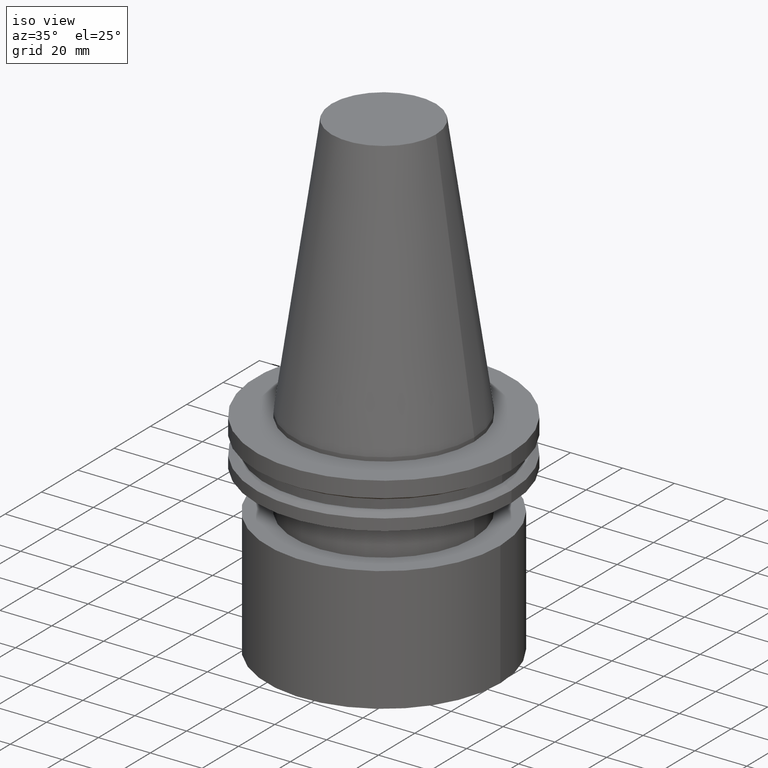
[diagram: clean part render]
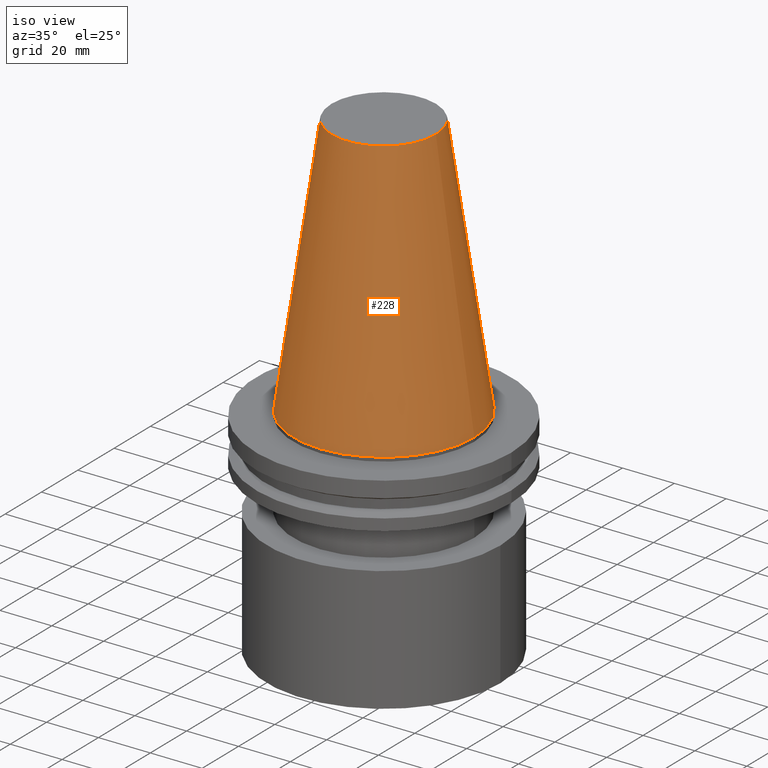
[diagram: same view with one face highlighted and labeled with its STEP entity id]
A machine part, iso view. The second image highlights one B-rep face of the part: STEP entity #228.
In plain terms, the highlighted conical surface has half-angle 8.297 deg.
Its self-contained STEP definition (entity closure, byte-faithful):
#3 = VERTEX_POINT ( 'NONE', #72 ) ;
#39 = EDGE_CURVE ( 'NONE', #227, #227, #78, .T. ) ;
#60 = CARTESIAN_POINT ( 'NONE',  ( 0.000000000000000000, 0.000000000000000000, 0.000000000000000000 ) ) ;
#61 = DIRECTION ( 'NONE',  ( 1.000000000000000000, 0.000000000000000000, 0.000000000000000000 ) ) ;
#72 = CARTESIAN_POINT ( 'NONE',  ( 20.10819343178871321, 0.000000000000000000, 101.5999999999999801 ) ) ;
#78 = CIRCLE ( 'NONE', #358, 34.92499999999999005 ) ;
#80 = CARTESIAN_POINT ( 'NONE',  ( 0.000000000000000000, 0.000000000000000000, 0.000000000000000000 ) ) ;
#92 = DIRECTION ( 'NONE',  ( -1.000000000000000000, 0.000000000000000000, 0.000000000000000000 ) ) ;
#96 = ORIENTED_EDGE ( 'NONE', *, *, #39, .T. ) ;
#153 = CARTESIAN_POINT ( 'NONE',  ( 0.000000000000000000, 0.000000000000000000, 101.5999999999999801 ) ) ;
#208 = DIRECTION ( 'NONE',  ( -0.000000000000000000, -0.000000000000000000, 1.000000000000000000 ) ) ;
#214 = AXIS2_PLACEMENT_3D ( 'NONE', #60, #217, #92 ) ;
#217 = DIRECTION ( 'NONE',  ( 0.000000000000000000, 0.000000000000000000, -1.000000000000000000 ) ) ;
#227 = VERTEX_POINT ( 'NONE', #371 ) ;
#228 = ADVANCED_FACE ( 'NONE', ( #366, #369 ), #374, .T. ) ;
#238 = ORIENTED_EDGE ( 'NONE', *, *, #320, .F. ) ;
#255 = EDGE_LOOP ( 'NONE', ( #238 ) ) ;
#276 = DIRECTION ( 'NONE',  ( -0.000000000000000000, -0.000000000000000000, 1.000000000000000000 ) ) ;
#284 = EDGE_LOOP ( 'NONE', ( #96 ) ) ;
#320 = EDGE_CURVE ( 'NONE', #3, #3, #362, .T. ) ;
#337 = AXIS2_PLACEMENT_3D ( 'NONE', #153, #276, #61 ) ;
#358 = AXIS2_PLACEMENT_3D ( 'NONE', #80, #208, #385 ) ;
#362 = CIRCLE ( 'NONE', #337, 20.10819343178871321 ) ;
#366 = FACE_BOUND ( 'NONE', #255, .T. ) ;
#369 = FACE_OUTER_BOUND ( 'NONE', #284, .T. ) ;
#371 = CARTESIAN_POINT ( 'NONE',  ( 34.92499999999999005, 0.000000000000000000, 0.000000000000000000 ) ) ;
#374 = CONICAL_SURFACE ( 'NONE', #214, 34.92499999999999005, 0.1448138465474119452 ) ;
#385 = DIRECTION ( 'NONE',  ( 1.000000000000000000, 0.000000000000000000, 0.000000000000000000 ) ) ;